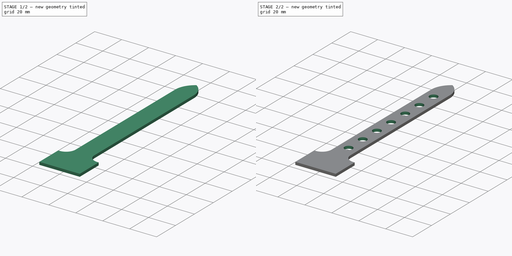
[diagram: build sequence overview — one tinted view per stage of 2, left to right]
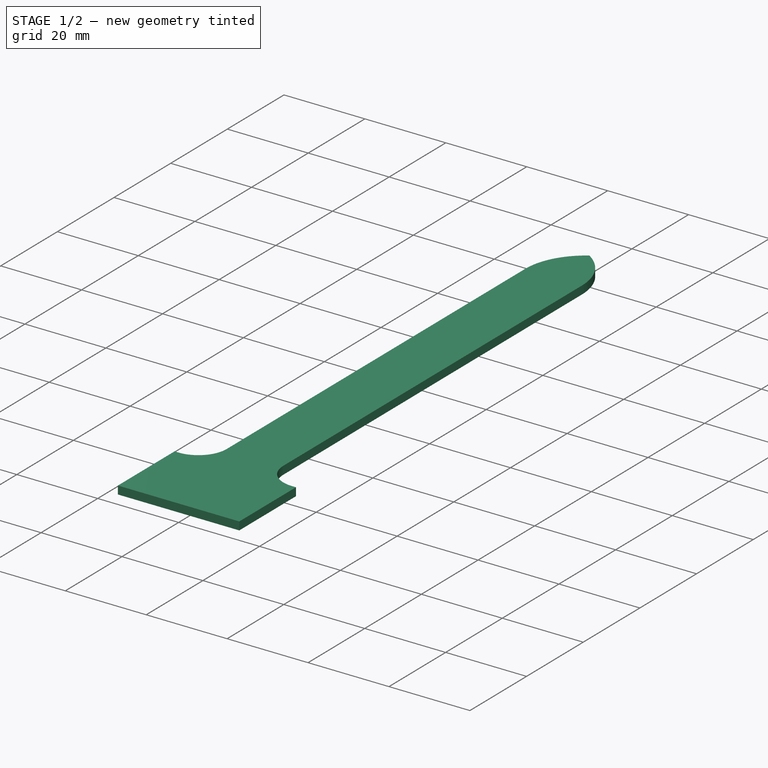
[diagram: stage 1 of 2 — iso view after this stage's code; geometry added in this stage tinted green]
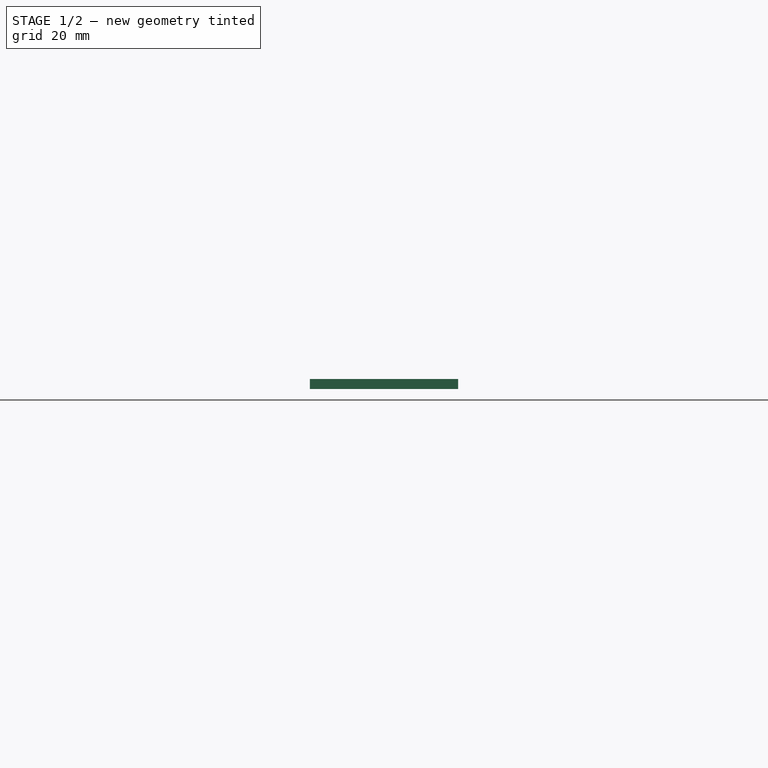
[diagram: stage 1 of 2 — front view after this stage's code; geometry added in this stage tinted green]
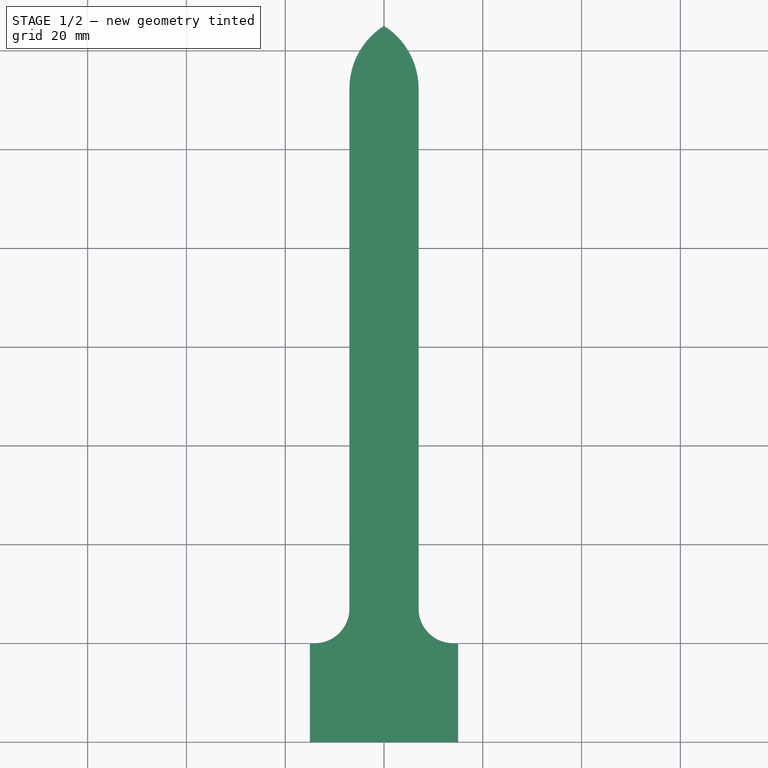
[diagram: stage 1 of 2 — top view after this stage's code; geometry added in this stage tinted green]
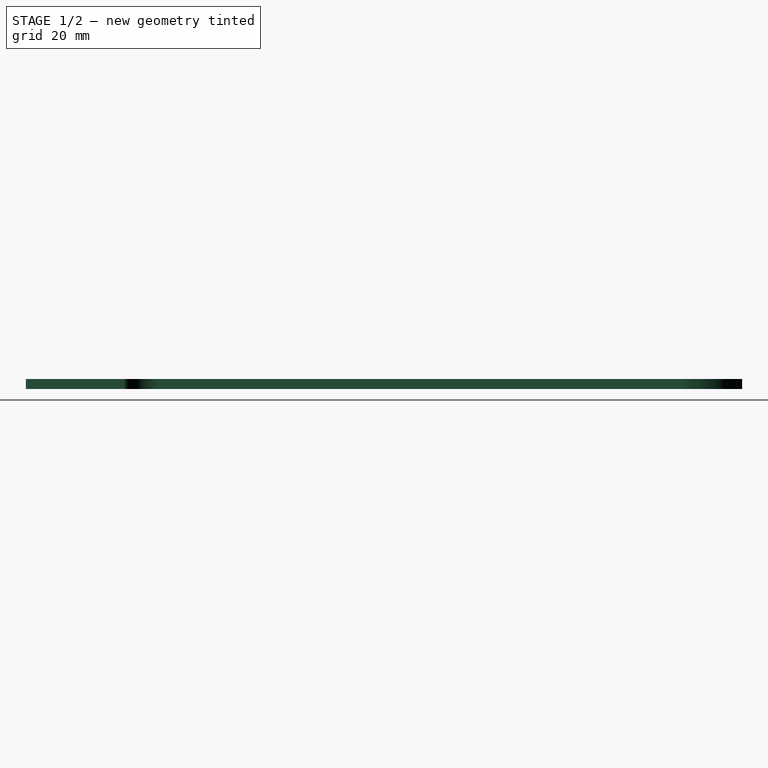
[diagram: stage 1 of 2 — right view after this stage's code; geometry added in this stage tinted green]
FCSTD DOCUMENT  (FreeCAD 0.18R16146 (Git))
Label: Sangle
License: All rights reserved
LicenseURL: http://en.wikipedia.org/wiki/All_rights_reserved
objects: Sketcher::SketchObject×2, PartDesign::Pad×1, PartDesign::Mirrored×1, PartDesign::Hole×1, PartDesign::Body×1, Drawing::FeatureViewPart×1, Drawing::FeaturePage×1
note: 8 computed .brp shape members not serialized (recipe doc carries the construction recipe); baked Part::Feature solids carry a one-line shape summary decoded from their .brp

FEATURE [Sketcher::SketchObject] Sketch
  MapMode = 5
  Support = -> [XY_Plane]
  sketch-geometry (8):
    g0: LineSegment StartX=0 StartY=0 StartZ=0 EndX=15 EndY=0 EndZ=0
    g1: LineSegment StartX=15 StartY=0 StartZ=0 EndX=15 EndY=20 EndZ=0
    g2: LineSegment StartX=7 StartY=132.311 StartZ=0 EndX=7 EndY=28.74 EndZ=0
    g3: ArcOfCircle CenterX=-8 CenterY=132.311 CenterZ=0 NormalX=0 NormalY=0 NormalZ=1 AngleXU=0 Radius=15 StartAngle=9e-16 EndAngle=1.00826
    g4: LineSegment StartX=0 StartY=145 StartZ=0 EndX=0 EndY=0 EndZ=0
    g5: LineSegment StartX=14 StartY=20 StartZ=0 EndX=15 EndY=20 EndZ=0
    g6: ArcOfCircle CenterX=14 CenterY=27 CenterZ=0 NormalX=0 NormalY=0 NormalZ=1 AngleXU=0 Radius=7 StartAngle=3.14159 EndAngle=4.71239
    g7: LineSegment StartX=7 StartY=28.74 StartZ=0 EndX=7 EndY=27 EndZ=0
  constraints (25):
    c: Coincident(g0,g-1)
    c: Horizontal(g0)
    c: Coincident(g1,g0)
    c: Vertical(g1)
    c: Vertical(g2)
    c: DistanceX(g0,g0) = 15
    c: DistanceY(g1,g1) = 20
    c: PointOnObject(g3,g-2)
    c: DistanceX(g-2,g2) = 7
    c: Tangent(g3,g2) = 1.5708
    c: PointOnObject(g2,g3)
    c: Radius(g3) = 15
    c: DistanceY(g-1,g3) = 145
    c: Coincident(g4,g3)
    c: Vertical(g4)
    c: PointOnObject(g4,g-1)
    c: Horizontal(g5)
    c: Coincident(g5,g1)
    c: Radius(g6) = 7
    c: Tangent(g6,g5) = -1.5708
    c: Tangent(g6,g2)
    c: Coincident(g7,g2)
    c: Coincident(g7,g6)
    c: Distance(g7) = 1.74
    c: Vertical(g7)
FEATURE [PartDesign::Pad] Pad
  Length = 2
  Length2 = 100
  Profile = -> Sketch
  Type = 0
FEATURE [PartDesign::Mirrored] Mirrored
  BaseFeature = -> Pad
  MirrorPlane = -> Sketch [V_Axis]
  Originals = -> [Pad]
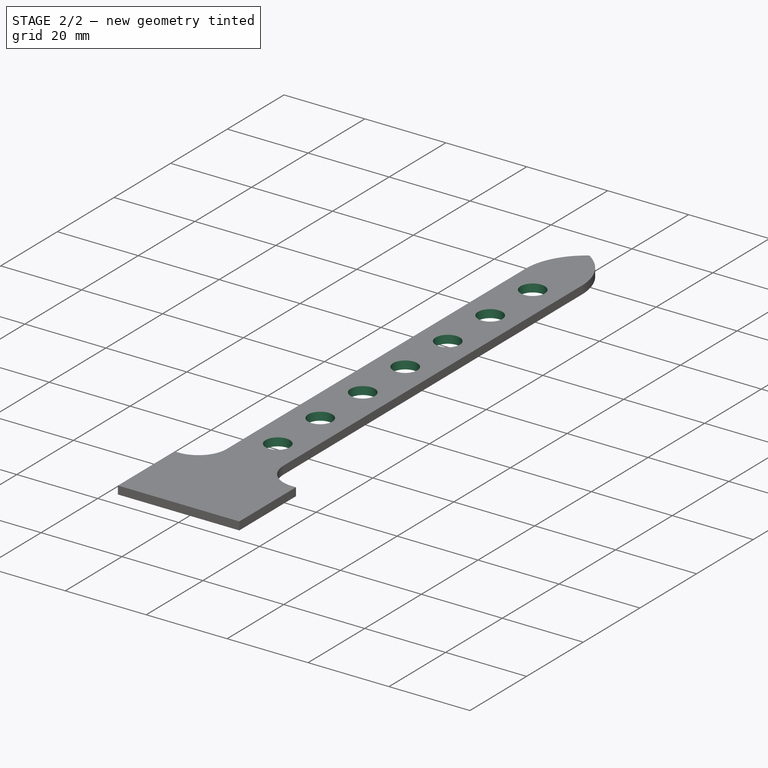
[diagram: stage 2 of 2 — iso view after this stage's code; geometry added in this stage tinted green]
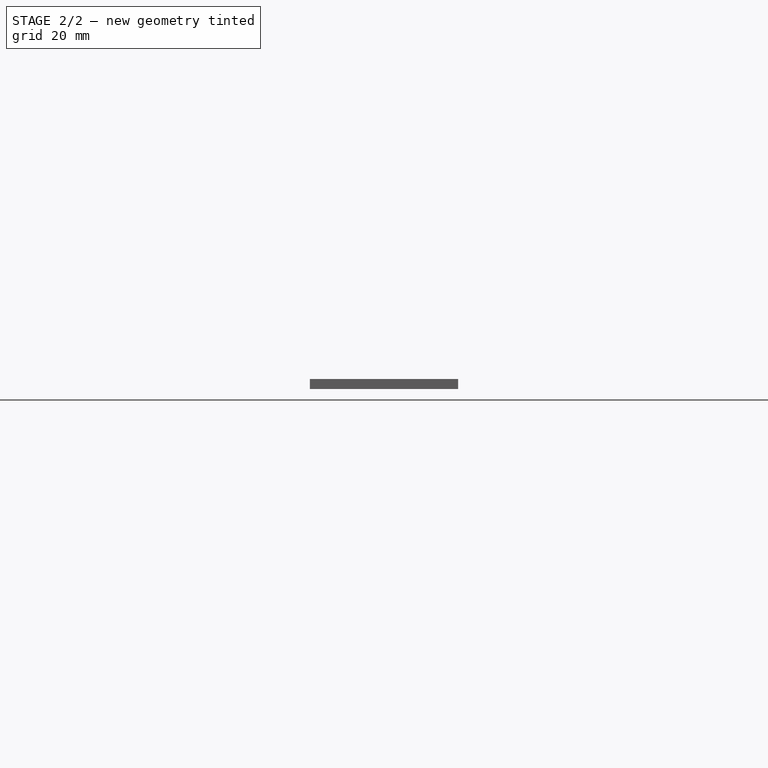
[diagram: stage 2 of 2 — front view after this stage's code; geometry added in this stage tinted green]
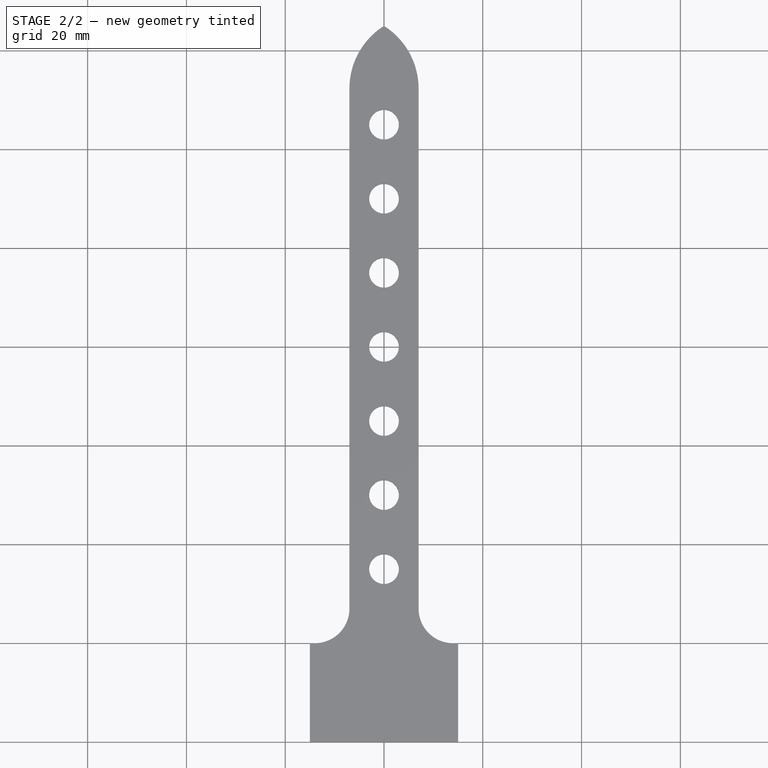
[diagram: stage 2 of 2 — top view after this stage's code; geometry added in this stage tinted green]
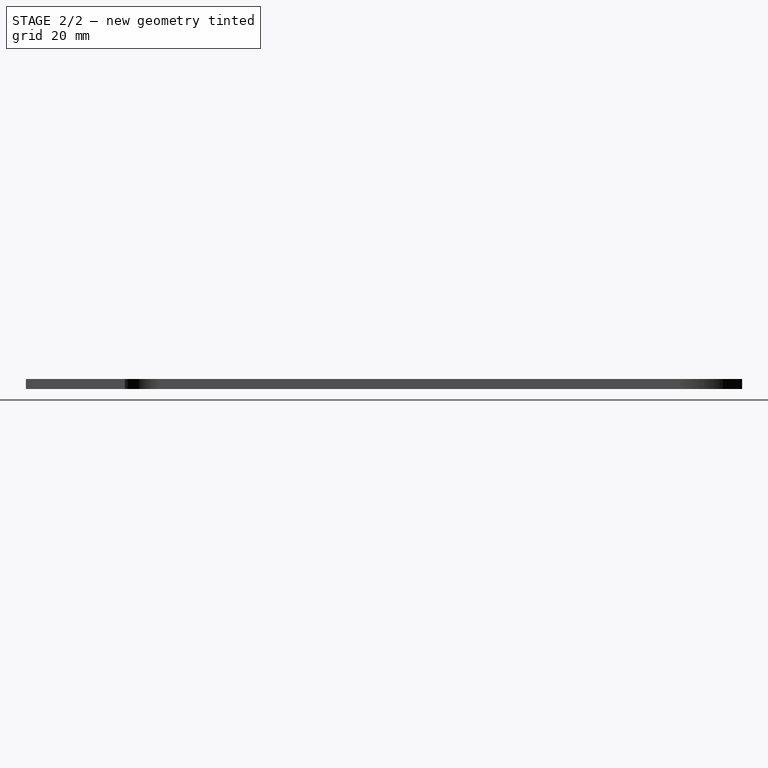
[diagram: stage 2 of 2 — right view after this stage's code; geometry added in this stage tinted green]
FEATURE [Sketcher::SketchObject] Sketch001
  MapMode = 5
  Placement = pos=(0,0,2) rot=(0,0,1;0rad)
  Support = -> [Mirrored]
  sketch-geometry (7):
    g0: Circle CenterX=0 CenterY=35 CenterZ=0 NormalX=0 NormalY=0 NormalZ=1 AngleXU=0 Radius=1.5
    g1: Circle CenterX=0 CenterY=50 CenterZ=0 NormalX=0 NormalY=0 NormalZ=1 AngleXU=0 Radius=1.5
    g2: Circle CenterX=0 CenterY=65 CenterZ=0 NormalX=0 NormalY=0 NormalZ=1 AngleXU=0 Radius=1.5
    g3: Circle CenterX=0 CenterY=80 CenterZ=0 NormalX=0 NormalY=0 NormalZ=1 AngleXU=0 Radius=1.5
    g4: Circle CenterX=0 CenterY=95 CenterZ=0 NormalX=0 NormalY=0 NormalZ=1 AngleXU=0 Radius=1.5
    g5: Circle CenterX=0 CenterY=110 CenterZ=0 NormalX=0 NormalY=0 NormalZ=1 AngleXU=0 Radius=1.5
    g6: Circle CenterX=0 CenterY=125 CenterZ=0 NormalX=0 NormalY=0 NormalZ=1 AngleXU=0 Radius=1.5
  constraints (21):
    c: PointOnObject(g0,g-2)
    c: Radius(g0) = 1.5
    c: DistanceY(g-1,g0) = 35
    c: PointOnObject(g1,g-2)
    c: Distance(g1,g0) = 15
    c: Radius(g1) = 1.5
    c: PointOnObject(g2,g-2)
    c: Distance(g2,g1) = 15
    c: Radius(g2) = 1.5
    c: PointOnObject(g3,g-2)
    c: Radius(g3) = 1.5
    c: Distance(g3,g2) = 15
    c: PointOnObject(g4,g-2)
    c: Distance(g4,g3) = 15
    c: Radius(g4) = 1.5
    c: PointOnObject(g5,g-2)
    c: Distance(g5,g4) = 15
    c: Radius(g5) = 1.5
    c: PointOnObject(g6,g-2)
    c: Distance(g6,g5) = 15
    c: Radius(g6) = 1.5
FEATURE [PartDesign::Hole] Hole
  BaseFeature = -> Mirrored
  Depth = 25
  DepthType = 0
  Diameter = 6
  DrillPoint = 1
  DrillPointAngle = 118
  HoleCutCountersinkAngle = 90
  HoleCutDepth = 0
  HoleCutDiameter = 0
  HoleCutType = 0
  ModelActualThread = false
  Profile = -> Sketch001
  Tapered = false
  TaperedAngle = 90
  ThreadAngle = 0
  ThreadClass = 0
  ThreadCutOffInner = 0
  ThreadCutOffOuter = 0
  ThreadDirection = 0
  ThreadFit = 0
  ThreadPitch = 0
  ThreadSize = 0
  ThreadType = 0
  Threaded = false
FEATURE [PartDesign::Body] Body
  Group = -> [Sketch,Pad,Mirrored,Sketch001,Hole]
  Origin = -> Origin
  Tip = -> Hole
FEATURE [Drawing::FeatureViewPart] Ortho  label="Ortho_0_0"
  Direction = (0,0,1)
  HiddenWidth = 0.15
  LineWidth = 0.35
  Rotation = 90
  ShowHiddenLines = false
  ShowSmoothLines = false
  Source = -> Hole
  Tolerance = 0.05
  ViewResult = <blob: 2145 chars omitted>
  Visible = false
  X = 76
  Y = 86
FEATURE [Drawing::FeaturePage] Page
  EditableTexts = Dubois Jérôme | Sangle | FreeCAD DRAWING | A4 | 1/1 | 1 | PN | DN | 28/12/2021 | REV A
  Group = -> [Ortho]
  Template = <path>
note: 1 file-system path scrubbed to <path> (originals preserved in the JSON sidecar)
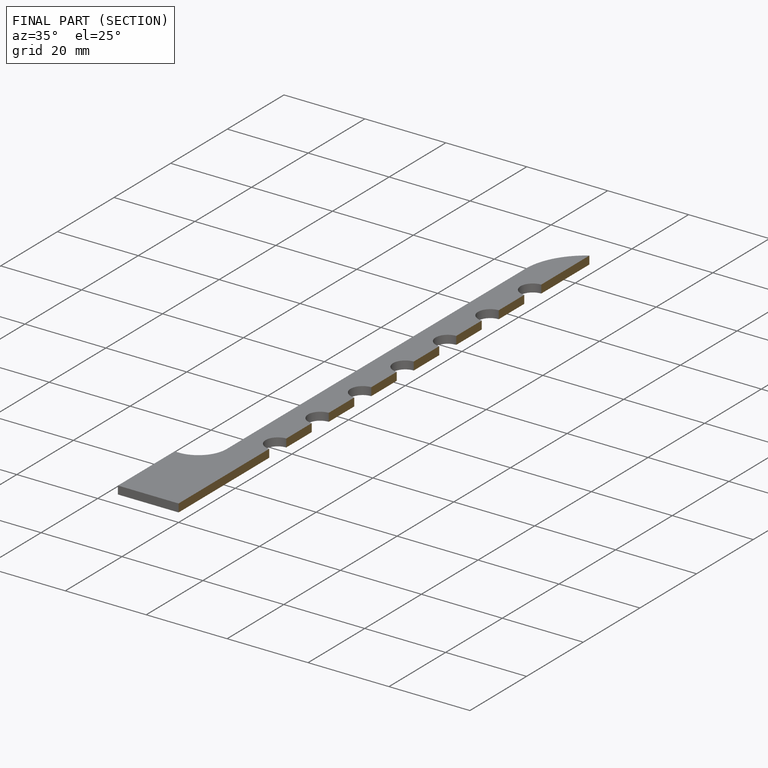
[diagram: finished part — half-section view (interior)]
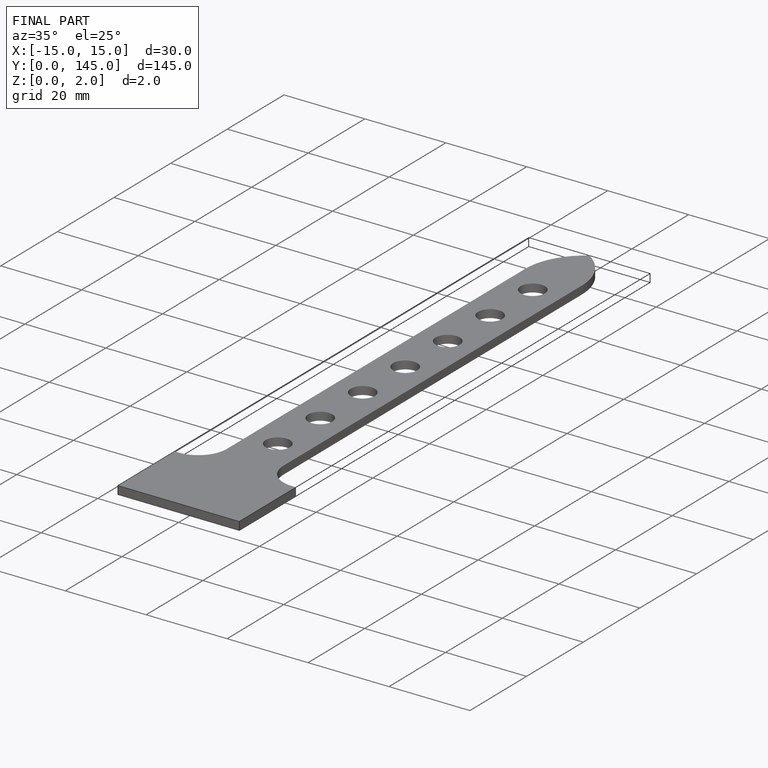
[diagram: finished part — iso view with bounding-box wireframe]
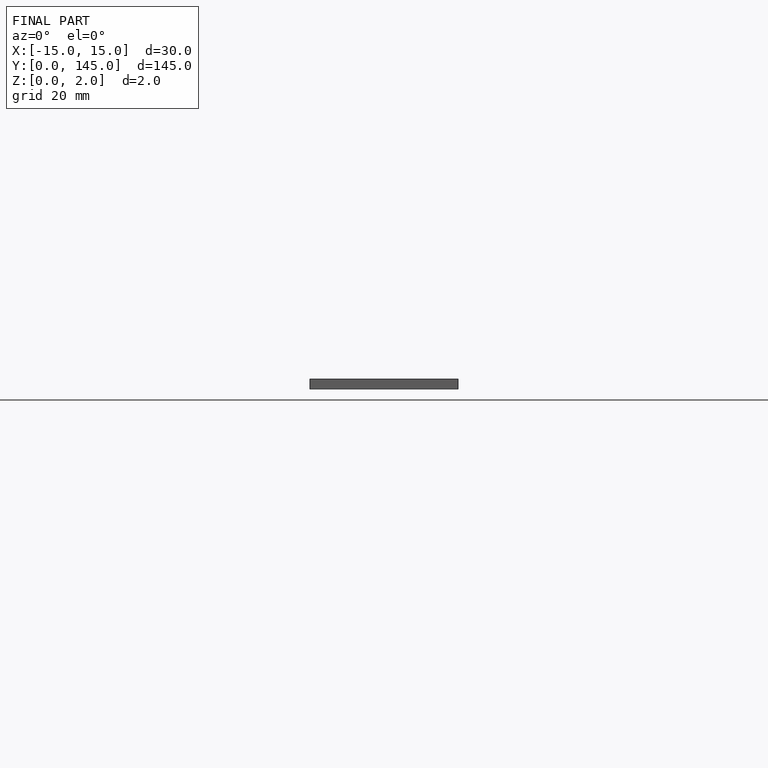
[diagram: finished part — front view with bounding-box wireframe]
